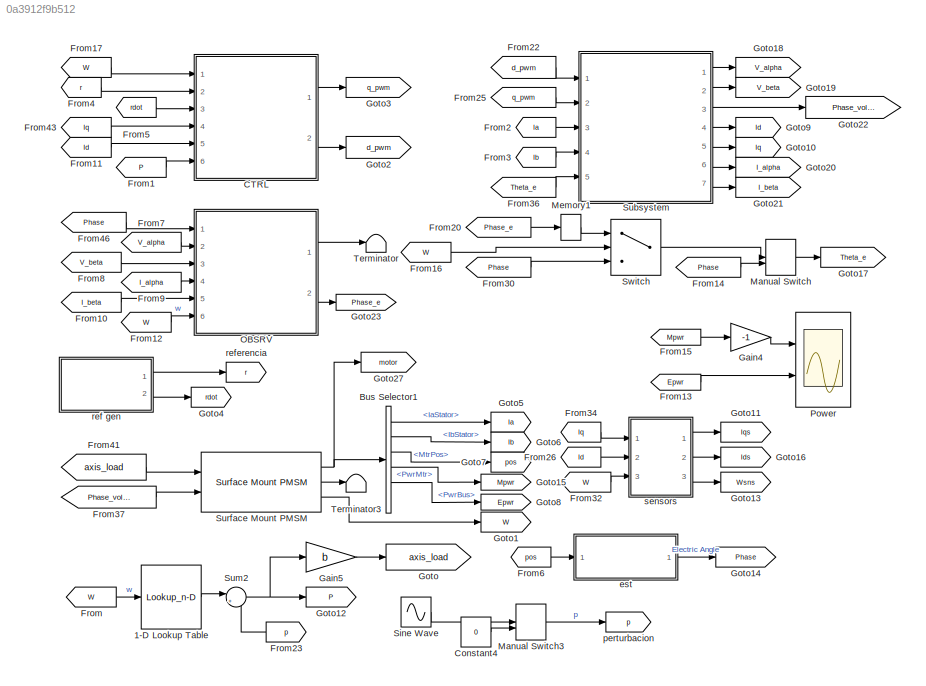
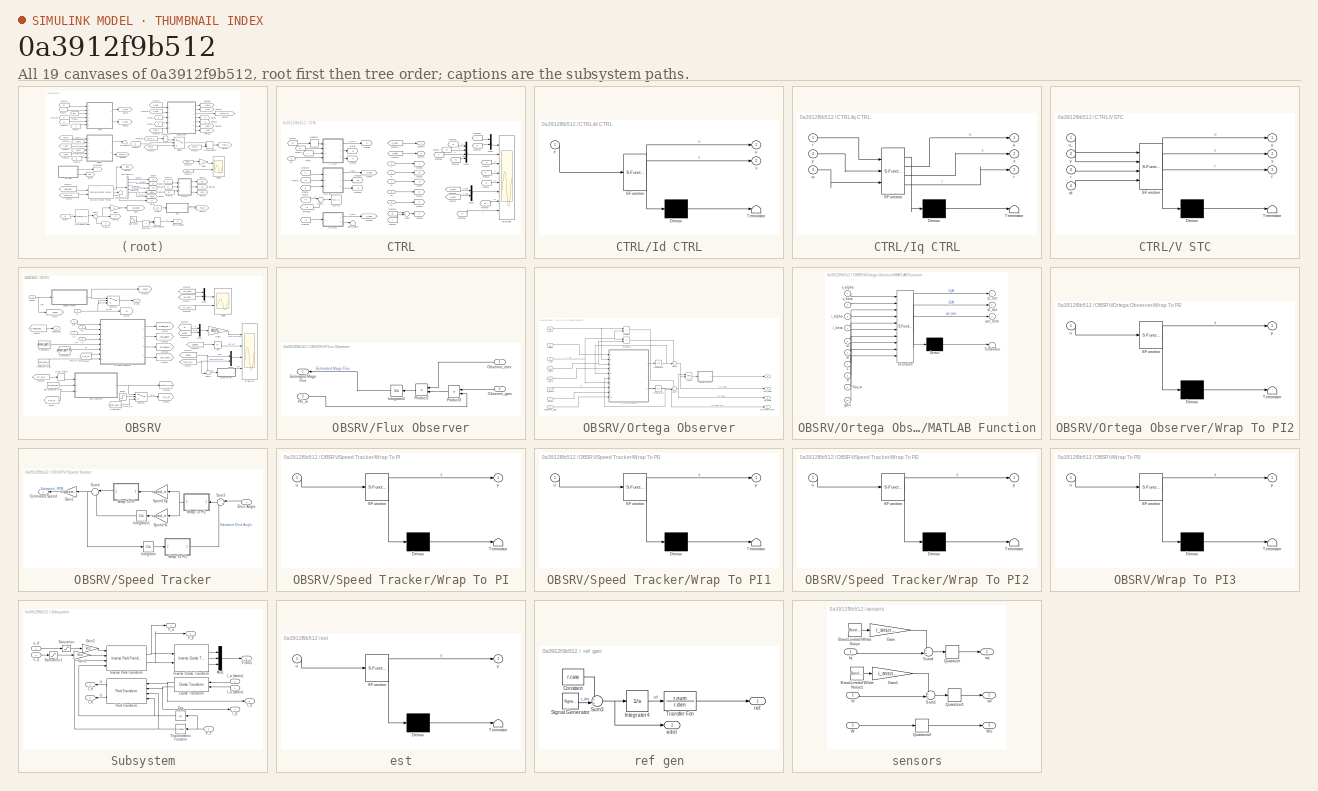
[diagram: thumbnail index - all 19 canvases of the model, root first then tree order]
MODEL slx_0a3912f9b512
KIND model
CONFIG AbsTol = auto
CONFIG EnableMultiTasking = on
CONFIG FixedStep = t_int
CONFIG InitFcn = svm_stc_bldc_data
CONFIG MaxStep = auto
CONFIG MinStep = 1e-6
CONFIG RelTol = 1e-3
CONFIG SampleTimeConstraint = Unconstrained
CONFIG SolverName = VariableStepAuto
CONFIG StartTime = 0.0
CONFIG StopTime = t_sim
BLOCK [Lookup_n-D] 1-D Lookup Table
  BreakpointsForDimension1 = fluid.W
  InputPortMap = u0
  InternalRulePriority = Speed
  NumberOfTableDimensions = 1
  Ports = [1, 1]
  RndMeth = Simplest
  Table = fluid.P
BLOCK [BusSelector] Bus Selector1
  OutputSignals = IaStator,IbStator,MtrPos,PwrInfo.PwrTrnsfrd.PwrMtr,PwrInfo.PwrTrnsfrd.PwrBus,MtrSpd
  Ports = [1, 6]
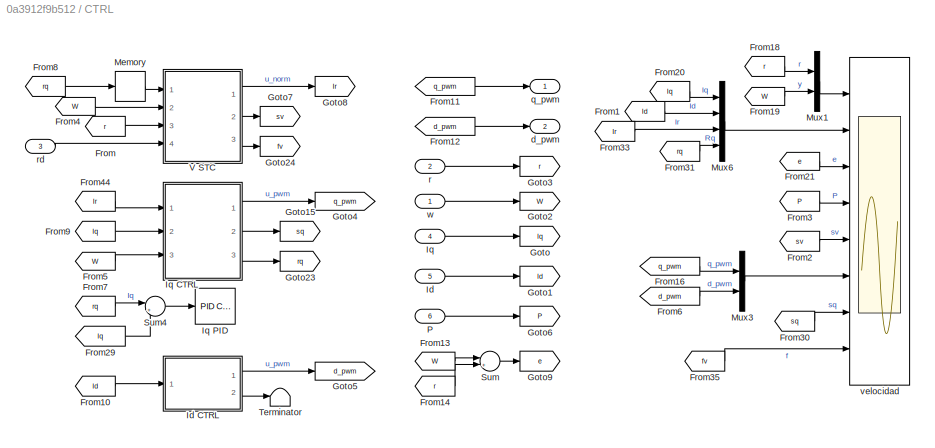
BLOCK [SubSystem] CTRL
  Ports = [6, 2]
  RequestExecContextInheritance = off
BLOCK [From] CTRL/From
  GotoTag = r
BLOCK [From] CTRL/From1
  GotoTag = Id
BLOCK [From] CTRL/From10
  GotoTag = Id
BLOCK [From] CTRL/From11
  GotoTag = q_pwm
BLOCK [From] CTRL/From12
  GotoTag = d_pwm
BLOCK [From] CTRL/From13
  GotoTag = W
BLOCK [From] CTRL/From14
  GotoTag = r
BLOCK [From] CTRL/From16
  GotoTag = q_pwm
BLOCK [From] CTRL/From18
  GotoTag = r
BLOCK [From] CTRL/From19
  GotoTag = W
BLOCK [From] CTRL/From2
  GotoTag = sv
BLOCK [From] CTRL/From20
  GotoTag = Iq
BLOCK [From] CTRL/From21
  GotoTag = e
BLOCK [From] CTRL/From29
  Commented = on
  GotoTag = Iq
BLOCK [From] CTRL/From3
  GotoTag = P
BLOCK [From] CTRL/From30
  GotoTag = sq
BLOCK [From] CTRL/From31
  GotoTag = rq
BLOCK [From] CTRL/From33
  GotoTag = Ir
BLOCK [From] CTRL/From35
  GotoTag = fv
BLOCK [From] CTRL/From4
  GotoTag = W
BLOCK [From] CTRL/From44
  GotoTag = Ir
BLOCK [From] CTRL/From5
  GotoTag = W
BLOCK [From] CTRL/From6
  GotoTag = d_pwm
BLOCK [From] CTRL/From7
  Commented = on
  GotoTag = rq
BLOCK [From] CTRL/From8
  GotoTag = rq
BLOCK [From] CTRL/From9
  GotoTag = Iq
BLOCK [Goto] CTRL/Goto
  GotoTag = Iq
BLOCK [Goto] CTRL/Goto1
  GotoTag = Id
BLOCK [Goto] CTRL/Goto15
  GotoTag = sq
BLOCK [Goto] CTRL/Goto2
  GotoTag = W
BLOCK [Goto] CTRL/Goto23
  GotoTag = rq
BLOCK [Goto] CTRL/Goto24
  GotoTag = fv
BLOCK [Goto] CTRL/Goto3
  GotoTag = r
BLOCK [Goto] CTRL/Goto4
  GotoTag = q_pwm
BLOCK [Goto] CTRL/Goto5
  GotoTag = d_pwm
BLOCK [Goto] CTRL/Goto6
  GotoTag = P
BLOCK [Goto] CTRL/Goto7
  GotoTag = sv
BLOCK [Goto] CTRL/Goto8
  GotoTag = Ir
BLOCK [Goto] CTRL/Goto9
  GotoTag = e
  NameLocation = top
BLOCK [Inport] CTRL/Id
  Port = 5
BLOCK [SubSystem] CTRL/Id CTRL
  ErrorFcn = Stateflow.Translate.translate
  PermitHierarchicalResolution = ExplicitOnly
  Ports = [1, 2]
  RequestExecContextInheritance = off
  SFBlockType = MATLAB Function
  SystemSampleTime = Id.ts
  TreatAsAtomicUnit = on
BLOCK [Demux] CTRL/Id CTRL/ Demux 
  Outputs = 1
  Ports = [1, 1]
BLOCK [S-Function] CTRL/Id CTRL/ SFunction 
  EnableBusSupport = on
  FunctionName = sf_sfun
  Parameters = Id
  PortCounts = [1 3]
  Ports = [1, 3]
  SFcnIsStateOwnerBlock = off
  SFunctionDeploymentMode = off
  Tag = Stateflow S-Function 2
BLOCK [Terminator] CTRL/Id CTRL/ Terminator 
BLOCK [Inport] CTRL/Id CTRL/e
BLOCK [Outport] CTRL/Id CTRL/s
  Port = 2
BLOCK [Outport] CTRL/Id CTRL/u
BLOCK [Inport] CTRL/Iq
  Port = 4
BLOCK [SubSystem] CTRL/Iq CTRL
  ErrorFcn = Stateflow.Translate.translate
  NameLocation = top
  PermitHierarchicalResolution = ExplicitOnly
  Ports = [3, 3]
  RequestExecContextInheritance = off
  SFBlockType = MATLAB Function
  SystemSampleTime = Iq.ts
  TreatAsAtomicUnit = on
BLOCK [Demux] CTRL/Iq CTRL/ Demux 
  Outputs = 1
  Ports = [1, 1]
BLOCK [S-Function] CTRL/Iq CTRL/ SFunction 
  EnableBusSupport = on
  FunctionName = sf_sfun
  Parameters = Iq
  PortCounts = [3 4]
  Ports = [3, 4]
  SFcnIsStateOwnerBlock = off
  SFunctionDeploymentMode = off
  Tag = Stateflow S-Function 3
BLOCK [Terminator] CTRL/Iq CTRL/ Terminator 
BLOCK [Outport] CTRL/Iq CTRL/r
  Port = 3
BLOCK [Inport] CTRL/Iq CTRL/r 
BLOCK [Outport] CTRL/Iq CTRL/s
  Port = 2
BLOCK [Outport] CTRL/Iq CTRL/u
BLOCK [Inport] CTRL/Iq CTRL/w
  Port = 3
BLOCK [Inport] CTRL/Iq CTRL/y
  Port = 2
BLOCK [Reference] CTRL/Iq PID  REF=pid_lib/PID Controller
  Commented = on
  Ports = [1, 1]
  SourceBlock = pid_lib/PID Controller
  SourceProductBaseCode = SL
  SourceType = PID 1dof
BLOCK [Memory] CTRL/Memory
BLOCK [Mux] CTRL/Mux1
  DisplayOption = bar
  Inputs = 2
  Ports = [2, 1]
BLOCK [Mux] CTRL/Mux3
  DisplayOption = bar
  Inputs = 2
  Ports = [2, 1]
BLOCK [Mux] CTRL/Mux6
  DisplayOption = bar
  Ports = [4, 1]
BLOCK [Inport] CTRL/P
  Port = 6
BLOCK [Sum] CTRL/Sum
  Inputs = |+-
  Ports = [2, 1]
BLOCK [Sum] CTRL/Sum4
  Commented = on
  Inputs = |+-
  Ports = [2, 1]
BLOCK [Terminator] CTRL/Terminator
BLOCK [SubSystem] CTRL/V STC
  ErrorFcn = Stateflow.Translate.translate
  NameLocation = top
  PermitHierarchicalResolution = ExplicitOnly
  Ports = [4, 3]
  RequestExecContextInheritance = off
  SFBlockType = MATLAB Function
  SystemSampleTime = v_stc.ts
  TreatAsAtomicUnit = on
BLOCK [Demux] CTRL/V STC/ Demux 
  Outputs = 1
  Ports = [1, 1]
BLOCK [S-Function] CTRL/V STC/ SFunction 
  EnableBusSupport = on
  FunctionName = sf_sfun
  Parameters = v_stc
  PortCounts = [4 4]
  Ports = [4, 4]
  SFcnIsStateOwnerBlock = off
  SFunctionDeploymentMode = off
  Tag = Stateflow S-Function 1
BLOCK [Terminator] CTRL/V STC/ Terminator 
BLOCK [Outport] CTRL/V STC/f
  Port = 3
BLOCK [Inport] CTRL/V STC/r
  Port = 3
BLOCK [Inport] CTRL/V STC/rd
  Port = 4
BLOCK [Outport] CTRL/V STC/s
  Port = 2
BLOCK [Outport] CTRL/V STC/u
BLOCK [Inport] CTRL/V STC/u_
BLOCK [Inport] CTRL/V STC/y
  Port = 2
BLOCK [Outport] CTRL/d_pwm
  Port = 2
BLOCK [Outport] CTRL/q_pwm
BLOCK [Inport] CTRL/r
  Port = 2
BLOCK [Inport] CTRL/rd
  Port = 3
BLOCK [Scope] CTRL/velocidad
  Floating = off
  NumInputPorts = 8
  Ports = [8]
  ScopeSpecificationString = Simulink.scopes.TimeScopeBlockCfg('CurrentConfiguration', extmgr.ConfigurationSet(extmgr.Configuration('Core','General UI',true,'FigureColor',[0.941176470588235 0.941176470588235 0.941176470588235]),extmgr.Configuration('Core','Source UI',true),extmgr.Configuration('Sources','WiredSimulink',true,'DataLoggingMaxPoints','1e6','DataLoggingLimitDataPoints',true,'DataLoggingSaveFormat','Array','DataLog...<+7453ch>
BLOCK [Inport] CTRL/w
BLOCK [Constant] Constant4
  Value = 0
BLOCK [From] From
  GotoTag = W
BLOCK [From] From1
  GotoTag = P
BLOCK [From] From10
  GotoTag = I_beta
BLOCK [From] From11
  GotoTag = Id
BLOCK [From] From12
  GotoTag = W
BLOCK [From] From13
  GotoTag = Epwr
BLOCK [From] From14
  GotoTag = Phase
BLOCK [From] From15
  GotoTag = Mpwr
BLOCK [From] From16
  GotoTag = W
BLOCK [From] From17
  GotoTag = W
BLOCK [From] From2
  GotoTag = Ia
BLOCK [From] From20
  GotoTag = Phase_e
BLOCK [From] From22
  GotoTag = d_pwm
BLOCK [From] From23
  GotoTag = p
BLOCK [From] From25
  GotoTag = q_pwm
BLOCK [From] From26
  Commented = on
  GotoTag = Id
BLOCK [From] From3
  GotoTag = Ib
BLOCK [From] From30
  GotoTag = Phase
  NameLocation = right
BLOCK [From] From32
  Commented = on
  GotoTag = W
BLOCK [From] From34
  Commented = on
  GotoTag = Iq
BLOCK [From] From36
  GotoTag = Theta_e
BLOCK [From] From37
  GotoTag = Phase_voltages
BLOCK [From] From4
  GotoTag = r
BLOCK [From] From41
  GotoTag = axis_load
BLOCK [From] From43
  GotoTag = Iq
BLOCK [From] From46
  GotoTag = Phase
BLOCK [From] From5
  GotoTag = rdot
BLOCK [From] From6
  GotoTag = pos
BLOCK [From] From7
  GotoTag = V_alpha
BLOCK [From] From8
  GotoTag = V_beta
BLOCK [From] From9
  GotoTag = I_alpha
BLOCK [Gain] Gain4
  Gain = -1
BLOCK [Gain] Gain5
  Gain = b
BLOCK [Goto] Goto
  GotoTag = axis_load
BLOCK [Goto] Goto1
  GotoTag = W
  NameLocation = top
BLOCK [Goto] Goto10
  GotoTag = Iq
BLOCK [Goto] Goto11
  Commented = on
  GotoTag = Iqs
BLOCK [Goto] Goto12
  GotoTag = P
BLOCK [Goto] Goto13
  Commented = on
  GotoTag = Wsns
BLOCK [Goto] Goto14
  GotoTag = Phase
BLOCK [Goto] Goto15
  GotoTag = Mpwr
BLOCK [Goto] Goto16
  Commented = on
  GotoTag = Ids
BLOCK [Goto] Goto17
  GotoTag = Theta_e
BLOCK [Goto] Goto18
  GotoTag = V_alpha
BLOCK [Goto] Goto19
  GotoTag = V_beta
BLOCK [Goto] Goto2
  GotoTag = d_pwm
BLOCK [Goto] Goto20
  GotoTag = I_alpha
BLOCK [Goto] Goto21
  GotoTag = I_beta
BLOCK [Goto] Goto22
  GotoTag = Phase_voltages
BLOCK [Goto] Goto23
  GotoTag = Phase_e
BLOCK [Goto] Goto27
  Commented = on
  GotoTag = motor
BLOCK [Goto] Goto3
  GotoTag = q_pwm
BLOCK [Goto] Goto4
  GotoTag = rdot
  NameLocation = top
BLOCK [Goto] Goto5
  GotoTag = Ia
BLOCK [Goto] Goto6
  GotoTag = Ib
BLOCK [Goto] Goto7
  GotoTag = pos
BLOCK [Goto] Goto8
  GotoTag = Epwr
BLOCK [Goto] Goto9
  GotoTag = Id
BLOCK [ManualSwitch] Manual Switch
BLOCK [ManualSwitch] Manual Switch3
  CurrentSetting = 0
BLOCK [Memory] Memory1
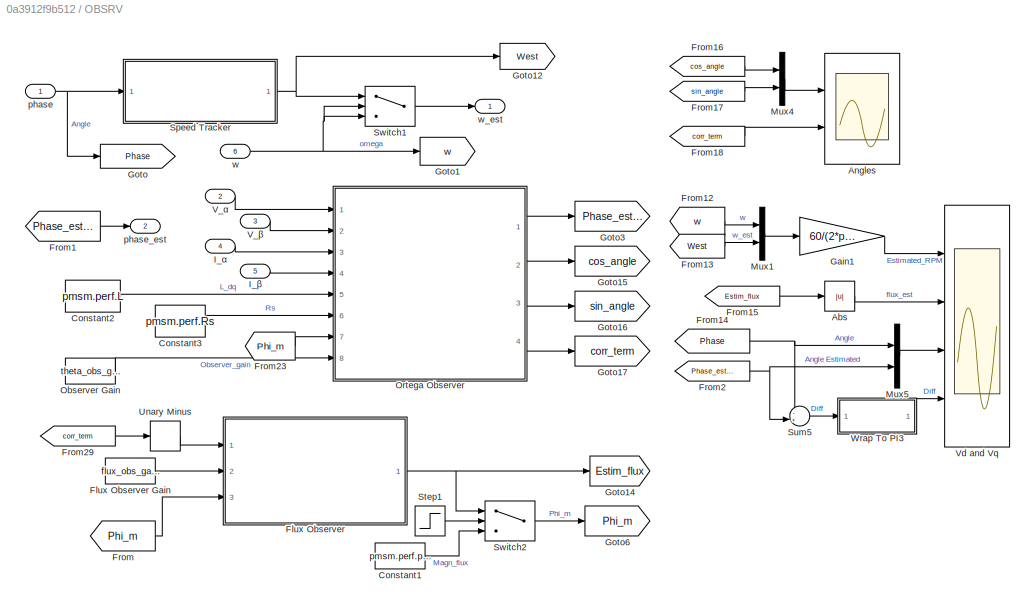
BLOCK [SubSystem] OBSRV
  Ports = [6, 2]
  RequestExecContextInheritance = off
BLOCK [Abs] OBSRV/Abs
  SaturateOnIntegerOverflow = off
BLOCK [Scope] OBSRV/Angles
  Floating = off
  NumInputPorts = 2
  Ports = [2]
  ScopeSpecificationString = Simulink.scopes.TimeScopeBlockCfg('CurrentConfiguration', extmgr.ConfigurationSet(extmgr.Configuration('Core','General UI',true),extmgr.Configuration('Core','Source UI',true),extmgr.Configuration('Sources','WiredSimulink',true,'DataLoggingVariableName','Angles','DataLogging',true,'DataLoggingSaveFormat','StructureWithTime'),extmgr.Configuration('Visuals','Time Domain',true,'SerializedDisplays',{st...<+2167ch>
BLOCK [Constant] OBSRV/Constant1
  Value = pmsm.perf.phi
BLOCK [Constant] OBSRV/Constant2
  Value = pmsm.perf.L
BLOCK [Constant] OBSRV/Constant3
  Value = pmsm.perf.Rs
BLOCK [SubSystem] OBSRV/Flux Observer
  Ports = [3, 1]
  RequestExecContextInheritance = off
BLOCK [Constant] OBSRV/Flux Observer Gain
  Value = flux_obs_gain
BLOCK [Outport] OBSRV/Flux Observer/Estimated Magn Flux
BLOCK [Integrator] OBSRV/Flux Observer/Integrator2
  Ports = [1, 1]
BLOCK [Inport] OBSRV/Flux Observer/Observer_error
BLOCK [Inport] OBSRV/Flux Observer/Observer_gain
  Port = 2
BLOCK [Inport] OBSRV/Flux Observer/Phi_m
  Port = 3
BLOCK [Product] OBSRV/Flux Observer/Product2
  Ports = [2, 1]
BLOCK [Product] OBSRV/Flux Observer/Product3
  Ports = [2, 1]
BLOCK [From] OBSRV/From
  GotoTag = Phi_m
BLOCK [From] OBSRV/From1
  GotoTag = Phase_estim
BLOCK [From] OBSRV/From12
  GotoTag = w
BLOCK [From] OBSRV/From13
  GotoTag = West
BLOCK [From] OBSRV/From14
  GotoTag = Phase
BLOCK [From] OBSRV/From15
  GotoTag = Estim_flux
BLOCK [From] OBSRV/From16
  GotoTag = cos_angle
BLOCK [From] OBSRV/From17
  GotoTag = sin_angle
BLOCK [From] OBSRV/From18
  GotoTag = corr_term
BLOCK [From] OBSRV/From2
  GotoTag = Phase_estim
BLOCK [From] OBSRV/From23
  GotoTag = Phi_m
BLOCK [From] OBSRV/From29
  GotoTag = corr_term
BLOCK [Gain] OBSRV/Gain1
  Gain = 60/(2*pi)
BLOCK [Goto] OBSRV/Goto
  GotoTag = Phase
BLOCK [Goto] OBSRV/Goto1
  GotoTag = w
BLOCK [Goto] OBSRV/Goto12
  GotoTag = West
BLOCK [Goto] OBSRV/Goto14
  GotoTag = Estim_flux
BLOCK [Goto] OBSRV/Goto15
  GotoTag = cos_angle
BLOCK [Goto] OBSRV/Goto16
  GotoTag = sin_angle
BLOCK [Goto] OBSRV/Goto17
  GotoTag = corr_term
BLOCK [Goto] OBSRV/Goto3
  GotoTag = Phase_estim
BLOCK [Goto] OBSRV/Goto6
  GotoTag = Phi_m
BLOCK [Inport] OBSRV/I_α
  Port = 4
BLOCK [Inport] OBSRV/I_β
  Port = 5
BLOCK [Mux] OBSRV/Mux1
  DisplayOption = bar
  Inputs = 2
  Ports = [2, 1]
BLOCK [Mux] OBSRV/Mux4
  DisplayOption = bar
  Inputs = 2
  Ports = [2, 1]
BLOCK [Mux] OBSRV/Mux5
  DisplayOption = bar
  Inputs = 2
  Ports = [2, 1]
BLOCK [Constant] OBSRV/Observer Gain
  NameLocation = left
  Value = theta_obs_gain
BLOCK [SubSystem] OBSRV/Ortega Observer
  Ports = [8, 4]
  RequestExecContextInheritance = off
BLOCK [Trigonometry] OBSRV/Ortega Observer/Atan2
  Operator = atan2
  Ports = [2, 1]
BLOCK [Integrator] OBSRV/Ortega Observer/Integrator
  Ports = [1, 1]
BLOCK [Integrator] OBSRV/Ortega Observer/Integrator1
  Ports = [1, 1]
BLOCK [Inport] OBSRV/Ortega Observer/L_dq
  Port = 5
BLOCK [SubSystem] OBSRV/Ortega Observer/MATLAB Function
  ErrorFcn = Stateflow.Translate.translate
  PermitHierarchicalResolution = ExplicitOnly
  Ports = [10, 3]
  RequestExecContextInheritance = off
  SFBlockType = MATLAB Function
  TreatAsAtomicUnit = on
BLOCK [Demux] OBSRV/Ortega Observer/MATLAB Function/ Demux 
  Outputs = 1
  Ports = [1, 1]
BLOCK [S-Function] OBSRV/Ortega Observer/MATLAB Function/ SFunction 
  EnableBusSupport = on
  FunctionName = sf_sfun
  PortCounts = [10 4]
  Ports = [10, 4]
  SFcnIsStateOwnerBlock = off
  SFunctionDeploymentMode = off
  Tag = Stateflow S-Function 5
BLOCK [Terminator] OBSRV/Ortega Observer/MATLAB Function/ Terminator 
BLOCK [Inport] OBSRV/Ortega Observer/MATLAB Function/L
  Port = 7
BLOCK [Inport] OBSRV/Ortega Observer/MATLAB Function/R
  Port = 8
BLOCK [Outport] OBSRV/Ortega Observer/MATLAB Function/corr_term
  Port = 3
BLOCK [Inport] OBSRV/Ortega Observer/MATLAB Function/flux_m
  Port = 9
BLOCK [Inport] OBSRV/Ortega Observer/MATLAB Function/gain
  Port = 10
BLOCK [Inport] OBSRV/Ortega Observer/MATLAB Function/i_alpha
  Port = 3
BLOCK [Inport] OBSRV/Ortega Observer/MATLAB Function/i_beta
  Port = 4
BLOCK [Inport] OBSRV/Ortega Observer/MATLAB Function/v_alpha
BLOCK [Inport] OBSRV/Ortega Observer/MATLAB Function/v_beta
  Port = 2
BLOCK [Inport] OBSRV/Ortega Observer/MATLAB Function/x1
  Port = 5
BLOCK [Outport] OBSRV/Ortega Observer/MATLAB Function/x1_dot
BLOCK [Inport] OBSRV/Ortega Observer/MATLAB Function/x2
  Port = 6
BLOCK [Outport] OBSRV/Ortega Observer/MATLAB Function/x2_dot
  Port = 2
BLOCK [Inport] OBSRV/Ortega Observer/Observer_gain
  Port = 8
BLOCK [Product] OBSRV/Ortega Observer/Product
  Ports = [2, 1]
BLOCK [Product] OBSRV/Ortega Observer/Product1
  Ports = [2, 1]
BLOCK [Inport] OBSRV/Ortega Observer/R_phase
  Port = 6
BLOCK [Sum] OBSRV/Ortega Observer/Sum3
  Inputs = -+|
  Ports = [2, 1]
BLOCK [Sum] OBSRV/Ortega Observer/Sum4
  Inputs = -+|
  Ports = [2, 1]
BLOCK [SubSystem] OBSRV/Ortega Observer/Wrap To PI2
  ErrorFcn = Stateflow.Translate.translate
  PermitHierarchicalResolution = ExplicitOnly
  Ports = [1, 1]
  RequestExecContextInheritance = off
  SFBlockType = MATLAB Function
  TreatAsAtomicUnit = on
BLOCK [Demux] OBSRV/Ortega Observer/Wrap To PI2/ Demux 
  Outputs = 1
  Ports = [1, 1]
BLOCK [S-Function] OBSRV/Ortega Observer/Wrap To PI2/ SFunction 
  EnableBusSupport = on
  FunctionName = sf_sfun
  PortCounts = [1 2]
  Ports = [1, 2]
  SFcnIsStateOwnerBlock = off
  SFunctionDeploymentMode = off
  Tag = Stateflow S-Function 6
BLOCK [Terminator] OBSRV/Ortega Observer/Wrap To PI2/ Terminator 
BLOCK [Inport] OBSRV/Ortega Observer/Wrap To PI2/u
BLOCK [Outport] OBSRV/Ortega Observer/Wrap To PI2/y
BLOCK [Outport] OBSRV/Ortega Observer/correction_term
  Port = 4
BLOCK [Outport] OBSRV/Ortega Observer/cos_angle
  Port = 2
BLOCK [Inport] OBSRV/Ortega Observer/flux_m
  Port = 7
BLOCK [Inport] OBSRV/Ortega Observer/i_alpha
  Port = 3
BLOCK [Inport] OBSRV/Ortega Observer/i_beta
  Port = 4
BLOCK [Outport] OBSRV/Ortega Observer/sin_angle
  Port = 3
BLOCK [Inport] OBSRV/Ortega Observer/v_alpha
BLOCK [Inport] OBSRV/Ortega Observer/v_beta
  Port = 2
BLOCK [Outport] OBSRV/Ortega Observer/y
BLOCK [SubSystem] OBSRV/Speed Tracker
  Ports = [1, 1]
  RequestExecContextInheritance = off
BLOCK [Inport] OBSRV/Speed Tracker/Elect Angle
BLOCK [Outport] OBSRV/Speed Tracker/Estimated Speed
BLOCK [Gain] OBSRV/Speed Tracker/Gain2
  Gain = 2/pmsm.spec.poles
BLOCK [Integrator] OBSRV/Speed Tracker/Integrator
  Ports = [1, 1]
BLOCK [Integrator] OBSRV/Speed Tracker/Integrator1
  Ports = [1, 1]
BLOCK [Gain] OBSRV/Speed Tracker/Speed Ki
  Gain = speed_obs.ki
BLOCK [Gain] OBSRV/Speed Tracker/Speed Kp
  Gain = speed_obs.kp
BLOCK [Sum] OBSRV/Speed Tracker/Sum3
  Inputs = |+-
  Ports = [2, 1]
BLOCK [Sum] OBSRV/Speed Tracker/Sum4
  Inputs = |++
  Ports = [2, 1]
BLOCK [SubSystem] OBSRV/Speed Tracker/Wrap To PI
  ErrorFcn = Stateflow.Translate.translate
  PermitHierarchicalResolution = ExplicitOnly
  Ports = [1, 1]
  RequestExecContextInheritance = off
  SFBlockType = MATLAB Function
  TreatAsAtomicUnit = on
BLOCK [Demux] OBSRV/Speed Tracker/Wrap To PI/ Demux 
  Outputs = 1
  Ports = [1, 1]
BLOCK [S-Function] OBSRV/Speed Tracker/Wrap To PI/ SFunction 
  EnableBusSupport = on
  FunctionName = sf_sfun
  PortCounts = [1 2]
  Ports = [1, 2]
  SFcnIsStateOwnerBlock = off
  SFunctionDeploymentMode = off
  Tag = Stateflow S-Function 7
BLOCK [Terminator] OBSRV/Speed Tracker/Wrap To PI/ Terminator 
BLOCK [Inport] OBSRV/Speed Tracker/Wrap To PI/u
BLOCK [Outport] OBSRV/Speed Tracker/Wrap To PI/y
BLOCK [SubSystem] OBSRV/Speed Tracker/Wrap To PI1
  ErrorFcn = Stateflow.Translate.translate
  PermitHierarchicalResolution = ExplicitOnly
  Ports = [1, 1]
  RequestExecContextInheritance = off
  SFBlockType = MATLAB Function
  TreatAsAtomicUnit = on
BLOCK [Demux] OBSRV/Speed Tracker/Wrap To PI1/ Demux 
  Outputs = 1
  Ports = [1, 1]
BLOCK [S-Function] OBSRV/Speed Tracker/Wrap To PI1/ SFunction 
  EnableBusSupport = on
  FunctionName = sf_sfun
  PortCounts = [1 2]
  Ports = [1, 2]
  SFcnIsStateOwnerBlock = off
  SFunctionDeploymentMode = off
  Tag = Stateflow S-Function 8
BLOCK [Terminator] OBSRV/Speed Tracker/Wrap To PI1/ Terminator 
BLOCK [Inport] OBSRV/Speed Tracker/Wrap To PI1/u
BLOCK [Outport] OBSRV/Speed Tracker/Wrap To PI1/y
BLOCK [SubSystem] OBSRV/Speed Tracker/Wrap To PI2
  ErrorFcn = Stateflow.Translate.translate
  PermitHierarchicalResolution = ExplicitOnly
  Ports = [1, 1]
  RequestExecContextInheritance = off
  SFBlockType = MATLAB Function
  TreatAsAtomicUnit = on
BLOCK [Demux] OBSRV/Speed Tracker/Wrap To PI2/ Demux 
  Outputs = 1
  Ports = [1, 1]
BLOCK [S-Function] OBSRV/Speed Tracker/Wrap To PI2/ SFunction 
  EnableBusSupport = on
  FunctionName = sf_sfun
  PortCounts = [1 2]
  Ports = [1, 2]
  SFcnIsStateOwnerBlock = off
  SFunctionDeploymentMode = off
  Tag = Stateflow S-Function 9
BLOCK [Terminator] OBSRV/Speed Tracker/Wrap To PI2/ Terminator 
BLOCK [Inport] OBSRV/Speed Tracker/Wrap To PI2/u
BLOCK [Outport] OBSRV/Speed Tracker/Wrap To PI2/y
BLOCK [Step] OBSRV/Step1
  After = 2
  SampleTime = 0
  Time = 0.01
BLOCK [Sum] OBSRV/Sum5
  Inputs = -+|
  Ports = [2, 1]
BLOCK [Switch] OBSRV/Switch1
  Criteria = u2 > Threshold
  InputSameDT = off
  SaturateOnIntegerOverflow = off
  Threshold = 25000*2*pi/60
BLOCK [Switch] OBSRV/Switch2
  Criteria = u2 > Threshold
  InputSameDT = off
  SaturateOnIntegerOverflow = off
  Threshold = 0.5
BLOCK [UnaryMinus] OBSRV/Unary Minus
BLOCK [Inport] OBSRV/V_α
  Port = 2
BLOCK [Inport] OBSRV/V_β
  Port = 3
BLOCK [Scope] OBSRV/Vd and Vq
  Floating = off
  NumInputPorts = 4
  Ports = [4]
  ScopeSpecificationString = Simulink.scopes.TimeScopeBlockCfg('CurrentConfiguration', extmgr.ConfigurationSet(extmgr.Configuration('Core','General UI',true),extmgr.Configuration('Core','Source UI',true),extmgr.Configuration('Sources','WiredSimulink',true,'DataLogging',true,'DataLoggingSaveFormat','StructureWithTime','DataLoggingVariableName','ObsData'),extmgr.Configuration('Visuals','Time Domain',true,'SerializedDisplays',{s...<+3638ch>
BLOCK [SubSystem] OBSRV/Wrap To PI3
  ErrorFcn = Stateflow.Translate.translate
  PermitHierarchicalResolution = ExplicitOnly
  Ports = [1, 1]
  RequestExecContextInheritance = off
  SFBlockType = MATLAB Function
  TreatAsAtomicUnit = on
BLOCK [Demux] OBSRV/Wrap To PI3/ Demux 
  Outputs = 1
  Ports = [1, 1]
BLOCK [S-Function] OBSRV/Wrap To PI3/ SFunction 
  EnableBusSupport = on
  FunctionName = sf_sfun
  PortCounts = [1 2]
  Ports = [1, 2]
  SFcnIsStateOwnerBlock = off
  SFunctionDeploymentMode = off
  Tag = Stateflow S-Function 10
BLOCK [Terminator] OBSRV/Wrap To PI3/ Terminator 
BLOCK [Inport] OBSRV/Wrap To PI3/u
BLOCK [Outport] OBSRV/Wrap To PI3/y
BLOCK [Inport] OBSRV/phase
BLOCK [Outport] OBSRV/phase_est
  Port = 2
BLOCK [Inport] OBSRV/w
  Port = 6
BLOCK [Outport] OBSRV/w_est
BLOCK [Scope] Power
  Floating = off
  NumInputPorts = 2
  Ports = [2]
  ScopeSpecificationString = Simulink.scopes.TimeScopeBlockCfg('CurrentConfiguration', extmgr.ConfigurationSet(extmgr.Configuration('Core','General UI',true),extmgr.Configuration('Core','Source UI',true),extmgr.Configuration('Sources','WiredSimulink',true,'DataLoggingVariableName','ScopeData6'),extmgr.Configuration('Visuals','Time Domain',true,'SerializedDisplays',{struct('MinYLimReal','-13516.79456','MaxYLimReal','11646.9924...<+2157ch>
BLOCK [Sin] Sine Wave
  Amplitude = p.a
  Frequency = p.w
  Ports = [0, 1]
  SampleTime = 0
BLOCK [SubSystem] Subsystem
  Ports = [5, 7]
  RequestExecContextInheritance = off
BLOCK [Reference] Subsystem/Clarke Transform  REF=mcbcontrolslib/Clarke Transform
  Ports = [2, 2]
  SourceBlock = mcbcontrolslib/Clarke Transform
  SourceProductBaseCode = MT
  SourceType = Clarke Transform
BLOCK [Trigonometry] Subsystem/Cos
  Operator = cos
  Ports = [1, 1]
BLOCK [Gain] Subsystem/Gain1
  Gain = Vcc
BLOCK [Gain] Subsystem/Gain2
  Gain = Vcc
BLOCK [Inport] Subsystem/I_a (stator)
  NameLocation = top
  Port = 3
BLOCK [Inport] Subsystem/I_b (stator)
  Port = 4
BLOCK [Outport] Subsystem/I_d
  Port = 4
BLOCK [Outport] Subsystem/I_q
  Port = 5
BLOCK [Outport] Subsystem/I_α
  Port = 6
BLOCK [Outport] Subsystem/I_β
  Port = 7
BLOCK [Reference] Subsystem/Inverse Clarke Transform  REF=mcbcontrolslib/Inverse Clarke Transform
  Ports = [2, 3]
  SourceBlock = mcbcontrolslib/Inverse Clarke Transform
  SourceProductBaseCode = MT
  SourceType = Inverse Clarke Transform
BLOCK [Reference] Subsystem/Inverse Park Transform  REF=mcbcontrolslib/Inverse Park Transform
  Ports = [4, 2]
  SourceBlock = mcbcontrolslib/Inverse Park Transform
  SourceProductBaseCode = MT
  SourceType = Inverse Park Transform
BLOCK [Mux] Subsystem/Mux1
  DisplayOption = bar
  Inputs = 3
  Ports = [3, 1]
BLOCK [Reference] Subsystem/Park Transform  REF=mcbcontrolslib/Park Transform
  Ports = [4, 2]
  SourceBlock = mcbcontrolslib/Park Transform
  SourceProductBaseCode = MT
  SourceType = Park Transform
BLOCK [Saturate] Subsystem/Saturation
  LowerLimit = -0.95
  UpperLimit = 0.95
BLOCK [Saturate] Subsystem/Saturation1
  LowerLimit = -0.95
  UpperLimit = 0.95
BLOCK [Trigonometry] Subsystem/Trigonometric Function
  Ports = [1, 1]
BLOCK [Outport] Subsystem/V (abc)
  Port = 3
BLOCK [Outport] Subsystem/V_α
BLOCK [Outport] Subsystem/V_β
  Port = 2
BLOCK [Inport] Subsystem/u_d
  NameLocation = top
BLOCK [Inport] Subsystem/u_q
  Port = 2
BLOCK [Inport] Subsystem/θ_e
  Port = 5
BLOCK [Sum] Sum2
  Inputs = |++
  Ports = [2, 1]
BLOCK [Reference] Surface Mount PMSM  REF=autolibpmsmexterior/Surface Mount PMSM
  Ports = [2, 3]
  SourceBlock = autolibpmsmexterior/Surface Mount PMSM
  SourceProductBaseCode = PW,DR,MT,UV,VE
  SourceType = Surface Mount PMSM
BLOCK [Switch] Switch
  Criteria = u2 > Threshold
  InputSameDT = off
  SaturateOnIntegerOverflow = off
  Threshold = 300
BLOCK [Terminator] Terminator
BLOCK [Terminator] Terminator3
BLOCK [SubSystem] est
  ErrorFcn = Stateflow.Translate.translate
  PermitHierarchicalResolution = ExplicitOnly
  Ports = [1, 1]
  RequestExecContextInheritance = off
  SFBlockType = MATLAB Function
  TreatAsAtomicUnit = on
BLOCK [Demux] est/ Demux 
  Outputs = 1
  Ports = [1, 1]
BLOCK [S-Function] est/ SFunction 
  EnableBusSupport = on
  FunctionName = sf_sfun
  Parameters = pmsm
  PortCounts = [1 2]
  Ports = [1, 2]
  SFcnIsStateOwnerBlock = off
  SFunctionDeploymentMode = off
  Tag = Stateflow S-Function 4
BLOCK [Terminator] est/ Terminator 
BLOCK [Inport] est/u
BLOCK [Outport] est/y
BLOCK [Goto] perturbacion
  GotoTag = p
  NameLocation = top
BLOCK [SubSystem] ref gen
  Ports = [0, 2]
  RequestExecContextInheritance = off
BLOCK [Constant] ref gen/Constant
  Value = r.rate
BLOCK [Integrator] ref gen/Integrator4
  InitialCondition = r.off
  LimitOutput = on
  LowerSaturationLimit = 0
  Ports = [1, 1]
  UpperSaturationLimit = r.lim
BLOCK [SignalGenerator] ref gen/Signal Generator
  Amplitude = r.a
  Frequency = r.f
  Ports = [0, 1]
BLOCK [Sum] ref gen/Sum3
  Inputs = ++|
  Ports = [2, 1]
BLOCK [TransferFcn] ref gen/Transfer Fcn
  Denominator = r.den
  Numerator = r.num
BLOCK [Outport] ref gen/edot
  Port = 2
BLOCK [Outport] ref gen/ref
BLOCK [Goto] referencia
  GotoTag = r
  NameLocation = top
BLOCK [SubSystem] sensors
  Commented = on
  Ports = [3, 3]
  RequestExecContextInheritance = off
BLOCK [Reference] sensors/Band-Limited White Noise  REF=simulink/Sources/Band-Limited
White Noise
  Ports = [0, 1]
  SourceBlock = simulink/Sources/Band-Limited\nWhite Noise
  SourceProductBaseCode = SL
  SourceType = Band-Limited White Noise.
BLOCK [Reference] sensors/Band-Limited White Noise1  REF=simulink/Sources/Band-Limited
White Noise
  Ports = [0, 1]
  SourceBlock = simulink/Sources/Band-Limited\nWhite Noise
  SourceProductBaseCode = SL
  SourceType = Band-Limited White Noise.
BLOCK [Gain] sensors/Gain
  Gain = i_sns.nse
BLOCK [Gain] sensors/Gain1
  Gain = i_sns.nse
BLOCK [Inport] sensors/Id
  Port = 2
BLOCK [Inport] sensors/Iq
BLOCK [Quantizer] sensors/Quantizer
  QuantizationInterval = i_sns.qnt
BLOCK [Quantizer] sensors/Quantizer1
  QuantizationInterval = i_sns.qnt
BLOCK [Quantizer] sensors/Quantizer2
  QuantizationInterval = w_sns.qnt
BLOCK [Sum] sensors/Sum1
  Inputs = ++|
  Ports = [2, 1]
BLOCK [Sum] sensors/Sum4
  Inputs = ++|
  Ports = [2, 1]
BLOCK [Inport] sensors/W
  Port = 3
BLOCK [Outport] sensors/Ws
  Port = 3
BLOCK [Outport] sensors/sd
  Port = 2
BLOCK [Outport] sensors/sq
LINE 1-D Lookup Table:1 -> Sum2:1
LINE Bus Selector1:1 -> Goto5:1
LINE Bus Selector1:2 -> Goto6:1
LINE Bus Selector1:3 -> Goto7:1
LINE Bus Selector1:4 -> Goto15:1
LINE Bus Selector1:5 -> Goto8:1
LINE CTRL/From10:1 -> CTRL/Id CTRL:1
LINE CTRL/From11:1 -> CTRL/q_pwm:1
LINE CTRL/From12:1 -> CTRL/d_pwm:1
LINE CTRL/From13:1 -> CTRL/Sum:1
LINE CTRL/From14:1 -> CTRL/Sum:2
LINE CTRL/From16:1 -> CTRL/Mux3:1
LINE CTRL/From18:1 -> CTRL/Mux1:1
LINE CTRL/From19:1 -> CTRL/Mux1:2
LINE CTRL/From1:1 -> CTRL/Mux6:2
LINE CTRL/From20:1 -> CTRL/Mux6:1
LINE CTRL/From21:1 -> CTRL/velocidad:3
LINE CTRL/From29:1 -> CTRL/Sum4:2
LINE CTRL/From2:1 -> CTRL/velocidad:5
LINE CTRL/From30:1 -> CTRL/velocidad:7
LINE CTRL/From31:1 -> CTRL/Mux6:4
LINE CTRL/From33:1 -> CTRL/Mux6:3
LINE CTRL/From35:1 -> CTRL/velocidad:8
LINE CTRL/From3:1 -> CTRL/velocidad:4
LINE CTRL/From44:1 -> CTRL/Iq CTRL:1
LINE CTRL/From4:1 -> CTRL/V STC:2
LINE CTRL/From5:1 -> CTRL/Iq CTRL:3
LINE CTRL/From6:1 -> CTRL/Mux3:2
LINE CTRL/From7:1 -> CTRL/Sum4:1
LINE CTRL/From8:1 -> CTRL/Memory:1
LINE CTRL/From9:1 -> CTRL/Iq CTRL:2
LINE CTRL/From:1 -> CTRL/V STC:3
LINE CTRL/Id CTRL:1 -> CTRL/Goto5:1
LINE CTRL/Id CTRL:2 -> CTRL/Terminator:1
LINE CTRL/Id:1 -> CTRL/Goto1:1
LINE CTRL/Iq CTRL:1 -> CTRL/Goto4:1
LINE CTRL/Iq CTRL:2 -> CTRL/Goto15:1
LINE CTRL/Iq CTRL:3 -> CTRL/Goto23:1
LINE CTRL/Iq:1 -> CTRL/Goto:1
LINE CTRL/Memory:1 -> CTRL/V STC:1
LINE CTRL/Mux1:1 -> CTRL/velocidad:1
LINE CTRL/Mux3:1 -> CTRL/velocidad:6
LINE CTRL/Mux6:1 -> CTRL/velocidad:2
LINE CTRL/P:1 -> CTRL/Goto6:1
LINE CTRL/Sum4:1 -> CTRL/Iq PID:1
LINE CTRL/Sum:1 -> CTRL/Goto9:1
LINE CTRL/V STC:1 -> CTRL/Goto8:1
LINE CTRL/V STC:2 -> CTRL/Goto7:1
LINE CTRL/V STC:3 -> CTRL/Goto24:1
LINE CTRL/r:1 -> CTRL/Goto3:1
LINE CTRL/rd:1 -> CTRL/V STC:4
LINE CTRL/w:1 -> CTRL/Goto2:1
LINE CTRL:1 -> Goto3:1
LINE CTRL:2 -> Goto2:1
LINE Constant4:1 -> Manual Switch3:2
LINE From10:1 -> OBSRV:5
LINE From11:1 -> CTRL:5
LINE From12:1 -> OBSRV:6
LINE From13:1 -> Power:2
LINE From14:1 -> Manual Switch:2
LINE From15:1 -> Gain4:1
LINE From16:1 -> Switch:2
LINE From17:1 -> CTRL:1
LINE From1:1 -> CTRL:6
LINE From20:1 -> Memory1:1
LINE From22:1 -> Subsystem:1
LINE From23:1 -> Sum2:2
LINE From25:1 -> Subsystem:2
LINE From26:1 -> sensors:2
LINE From2:1 -> Subsystem:3
LINE From30:1 -> Switch:3
LINE From32:1 -> sensors:3
LINE From34:1 -> sensors:1
LINE From36:1 -> Subsystem:5
LINE From37:1 -> Surface Mount PMSM:2
LINE From3:1 -> Subsystem:4
LINE From41:1 -> Surface Mount PMSM:1
LINE From43:1 -> CTRL:4
LINE From46:1 -> OBSRV:1
LINE From4:1 -> CTRL:2
LINE From5:1 -> CTRL:3
LINE From6:1 -> est:1
LINE From7:1 -> OBSRV:2
LINE From8:1 -> OBSRV:3
LINE From9:1 -> OBSRV:4
LINE From:1 -> 1-D Lookup Table:1
LINE Gain4:1 -> Power:1
LINE Gain5:1 -> Goto:1
LINE Manual Switch3:1 -> perturbacion:1
LINE Manual Switch:1 -> Goto17:1
LINE Memory1:1 -> Switch:1
LINE OBSRV/Abs:1 -> OBSRV/Vd and Vq:2
LINE OBSRV/Constant1:1 -> OBSRV/Switch2:3
LINE OBSRV/Constant2:1 -> OBSRV/Ortega Observer:5
LINE OBSRV/Constant3:1 -> OBSRV/Ortega Observer:6
LINE OBSRV/Flux Observer Gain:1 -> OBSRV/Flux Observer:2
LINE OBSRV/Flux Observer/Integrator2:1 -> OBSRV/Flux Observer/Estimated Magn Flux:1
LINE OBSRV/Flux Observer/Observer_error:1 -> OBSRV/Flux Observer/Product2:1
LINE OBSRV/Flux Observer/Observer_gain:1 -> OBSRV/Flux Observer/Product3:1
LINE OBSRV/Flux Observer/Phi_m:1 -> OBSRV/Flux Observer/Product3:2
LINE OBSRV/Flux Observer/Product2:1 -> OBSRV/Flux Observer/Integrator2:1
LINE OBSRV/Flux Observer/Product3:1 -> OBSRV/Flux Observer/Product2:2
NET OBSRV/Flux Observer:1 -> OBSRV/Goto14:1, OBSRV/Switch2:1
LINE OBSRV/From12:1 -> OBSRV/Mux1:1
LINE OBSRV/From13:1 -> OBSRV/Mux1:2
NET OBSRV/From14:1 -> OBSRV/Mux5:1, OBSRV/Sum5:1
LINE OBSRV/From15:1 -> OBSRV/Abs:1
LINE OBSRV/From16:1 -> OBSRV/Mux4:1
LINE OBSRV/From17:1 -> OBSRV/Mux4:2
LINE OBSRV/From18:1 -> OBSRV/Angles:2
LINE OBSRV/From1:1 -> OBSRV/phase_est:1
LINE OBSRV/From23:1 -> OBSRV/Ortega Observer:7
LINE OBSRV/From29:1 -> OBSRV/Unary Minus:1
NET OBSRV/From2:1 -> OBSRV/Mux5:2, OBSRV/Sum5:2
LINE OBSRV/From:1 -> OBSRV/Flux Observer:3
LINE OBSRV/Gain1:1 -> OBSRV/Vd and Vq:1
LINE OBSRV/I_α:1 -> OBSRV/Ortega Observer:3
LINE OBSRV/I_β:1 -> OBSRV/Ortega Observer:4
LINE OBSRV/Mux1:1 -> OBSRV/Gain1:1
LINE OBSRV/Mux4:1 -> OBSRV/Angles:1
LINE OBSRV/Mux5:1 -> OBSRV/Vd and Vq:3
LINE OBSRV/Observer Gain:1 -> OBSRV/Ortega Observer:8
LINE OBSRV/Ortega Observer/Atan2:1 -> OBSRV/Ortega Observer/Wrap To PI2:1
NET OBSRV/Ortega Observer/Integrator1:1 -> OBSRV/Ortega Observer/MATLAB Function:6, OBSRV/Ortega Observer/Sum4:2
NET OBSRV/Ortega Observer/Integrator:1 -> OBSRV/Ortega Observer/MATLAB Function:5, OBSRV/Ortega Observer/Sum3:2
NET OBSRV/Ortega Observer/L_dq:1 -> OBSRV/Ortega Observer/MATLAB Function:7, OBSRV/Ortega Observer/Product1:1, OBSRV/Ortega Observer/Product:2
LINE OBSRV/Ortega Observer/MATLAB Function:1 -> OBSRV/Ortega Observer/Integrator:1
LINE OBSRV/Ortega Observer/MATLAB Function:2 -> OBSRV/Ortega Observer/Integrator1:1
LINE OBSRV/Ortega Observer/MATLAB Function:3 -> OBSRV/Ortega Observer/correction_term:1
LINE OBSRV/Ortega Observer/Observer_gain:1 -> OBSRV/Ortega Observer/MATLAB Function:10
LINE OBSRV/Ortega Observer/Product1:1 -> OBSRV/Ortega Observer/Sum3:1
LINE OBSRV/Ortega Observer/Product:1 -> OBSRV/Ortega Observer/Sum4:1
LINE OBSRV/Ortega Observer/R_phase:1 -> OBSRV/Ortega Observer/MATLAB Function:8
NET OBSRV/Ortega Observer/Sum3:1 -> OBSRV/Ortega Observer/Atan2:2, OBSRV/Ortega Observer/cos_angle:1
NET OBSRV/Ortega Observer/Sum4:1 -> OBSRV/Ortega Observer/Atan2:1, OBSRV/Ortega Observer/sin_angle:1
LINE OBSRV/Ortega Observer/Wrap To PI2:1 -> OBSRV/Ortega Observer/y:1
LINE OBSRV/Ortega Observer/flux_m:1 -> OBSRV/Ortega Observer/MATLAB Function:9
NET OBSRV/Ortega Observer/i_alpha:1 -> OBSRV/Ortega Observer/MATLAB Function:3, OBSRV/Ortega Observer/Product1:2
LINE OBSRV/Ortega Observer/i_beta:1 -> OBSRV/Ortega Observer/MATLAB Function:4
LINE OBSRV/Ortega Observer/v_alpha:1 -> OBSRV/Ortega Observer/MATLAB Function:1
NET OBSRV/Ortega Observer/v_beta:1 -> OBSRV/Ortega Observer/MATLAB Function:2, OBSRV/Ortega Observer/Product:1
LINE OBSRV/Ortega Observer:1 -> OBSRV/Goto3:1
LINE OBSRV/Ortega Observer:2 -> OBSRV/Goto15:1
LINE OBSRV/Ortega Observer:3 -> OBSRV/Goto16:1
LINE OBSRV/Ortega Observer:4 -> OBSRV/Goto17:1
LINE OBSRV/Speed Tracker/Elect Angle:1 -> OBSRV/Speed Tracker/Sum3:1
LINE OBSRV/Speed Tracker/Gain2:1 -> OBSRV/Speed Tracker/Estimated Speed:1
LINE OBSRV/Speed Tracker/Integrator1:1 -> OBSRV/Speed Tracker/Sum4:2
LINE OBSRV/Speed Tracker/Integrator:1 -> OBSRV/Speed Tracker/Wrap To PI1:1
LINE OBSRV/Speed Tracker/Speed Ki:1 -> OBSRV/Speed Tracker/Integrator1:1
LINE OBSRV/Speed Tracker/Speed Kp:1 -> OBSRV/Speed Tracker/Wrap To PI:1
LINE OBSRV/Speed Tracker/Sum3:1 -> OBSRV/Speed Tracker/Wrap To PI2:1
NET OBSRV/Speed Tracker/Sum4:1 -> OBSRV/Speed Tracker/Gain2:1, OBSRV/Speed Tracker/Integrator:1
LINE OBSRV/Speed Tracker/Wrap To PI1:1 -> OBSRV/Speed Tracker/Sum3:2
NET OBSRV/Speed Tracker/Wrap To PI2:1 -> OBSRV/Speed Tracker/Speed Ki:1, OBSRV/Speed Tracker/Speed Kp:1
LINE OBSRV/Speed Tracker/Wrap To PI:1 -> OBSRV/Speed Tracker/Sum4:1
NET OBSRV/Speed Tracker:1 -> OBSRV/Goto12:1, OBSRV/Switch1:1
LINE OBSRV/Step1:1 -> OBSRV/Switch2:2
LINE OBSRV/Sum5:1 -> OBSRV/Wrap To PI3:1
LINE OBSRV/Switch1:1 -> OBSRV/w_est:1
LINE OBSRV/Switch2:1 -> OBSRV/Goto6:1
LINE OBSRV/Unary Minus:1 -> OBSRV/Flux Observer:1
LINE OBSRV/V_α:1 -> OBSRV/Ortega Observer:1
LINE OBSRV/V_β:1 -> OBSRV/Ortega Observer:2
LINE OBSRV/Wrap To PI3:1 -> OBSRV/Vd and Vq:4
NET OBSRV/phase:1 -> OBSRV/Goto:1, OBSRV/Speed Tracker:1
NET OBSRV/w:1 -> OBSRV/Goto1:1, OBSRV/Switch1:2, OBSRV/Switch1:3
LINE OBSRV:1 -> Terminator:1
LINE OBSRV:2 -> Goto23:1
LINE Sine Wave:1 -> Manual Switch3:1
NET Subsystem/Clarke Transform:1 -> Subsystem/I_α:1, Subsystem/Park Transform:1
NET Subsystem/Clarke Transform:2 -> Subsystem/I_β:1, Subsystem/Park Transform:2
NET Subsystem/Cos:1 -> Subsystem/Inverse Park Transform:4, Subsystem/Park Transform:4
LINE Subsystem/Gain1:1 -> Subsystem/Inverse Park Transform:2
LINE Subsystem/Gain2:1 -> Subsystem/Inverse Park Transform:1
LINE Subsystem/I_a (stator):1 -> Subsystem/Clarke Transform:1
LINE Subsystem/I_b (stator):1 -> Subsystem/Clarke Transform:2
LINE Subsystem/Inverse Clarke Transform:1 -> Subsystem/Mux1:1
LINE Subsystem/Inverse Clarke Transform:2 -> Subsystem/Mux1:2
LINE Subsystem/Inverse Clarke Transform:3 -> Subsystem/Mux1:3
NET Subsystem/Inverse Park Transform:1 -> Subsystem/Inverse Clarke Transform:1, Subsystem/V_α:1
NET Subsystem/Inverse Park Transform:2 -> Subsystem/Inverse Clarke Transform:2, Subsystem/V_β:1
LINE Subsystem/Mux1:1 -> Subsystem/V (abc):1
LINE Subsystem/Park Transform:1 -> Subsystem/I_d:1
LINE Subsystem/Park Transform:2 -> Subsystem/I_q:1
LINE Subsystem/Saturation1:1 -> Subsystem/Gain1:1
LINE Subsystem/Saturation:1 -> Subsystem/Gain2:1
NET Subsystem/Trigonometric Function:1 -> Subsystem/Inverse Park Transform:3, Subsystem/Park Transform:3
LINE Subsystem/u_d:1 -> Subsystem/Saturation:1
LINE Subsystem/u_q:1 -> Subsystem/Saturation1:1
NET Subsystem/θ_e:1 -> Subsystem/Cos:1, Subsystem/Trigonometric Function:1
LINE Subsystem:1 -> Goto18:1
LINE Subsystem:2 -> Goto19:1
LINE Subsystem:3 -> Goto22:1
LINE Subsystem:4 -> Goto9:1
LINE Subsystem:5 -> Goto10:1
LINE Subsystem:6 -> Goto20:1
LINE Subsystem:7 -> Goto21:1
NET Sum2:1 -> Gain5:1, Goto12:1
NET Surface Mount PMSM:1 -> Bus Selector1:1, Goto27:1
LINE Surface Mount PMSM:2 -> Terminator3:1
LINE Surface Mount PMSM:3 -> Goto1:1
LINE Switch:1 -> Manual Switch:1
LINE est:1 -> Goto14:1
LINE ref gen/Constant:1 -> ref gen/Sum3:1
LINE ref gen/Integrator4:1 -> ref gen/Transfer Fcn:1
LINE ref gen/Signal Generator:1 -> ref gen/Sum3:2
NET ref gen/Sum3:1 -> ref gen/Integrator4:1, ref gen/edot:1
LINE ref gen/Transfer Fcn:1 -> ref gen/ref:1
LINE ref gen:1 -> referencia:1
LINE ref gen:2 -> Goto4:1
LINE sensors/Band-Limited White Noise1:1 -> sensors/Gain1:1
LINE sensors/Band-Limited White Noise:1 -> sensors/Gain:1
LINE sensors/Gain1:1 -> sensors/Sum1:1
LINE sensors/Gain:1 -> sensors/Sum4:1
LINE sensors/Id:1 -> sensors/Sum1:2
LINE sensors/Iq:1 -> sensors/Sum4:2
LINE sensors/Quantizer1:1 -> sensors/sd:1
LINE sensors/Quantizer2:1 -> sensors/Ws:1
LINE sensors/Quantizer:1 -> sensors/sq:1
LINE sensors/Sum1:1 -> sensors/Quantizer1:1
LINE sensors/Sum4:1 -> sensors/Quantizer:1
LINE sensors/W:1 -> sensors/Quantizer2:1
LINE sensors:1 -> Goto11:1
LINE sensors:2 -> Goto16:1
LINE sensors:3 -> Goto13:1
note: NET lines group one-source signal fan-out (src -> all destinations, sorted); 1:1 wires keep LINE
CHART OBSRV/Ortega Observer/Wrap To PI2 states=1 transitions=1
  STATE_LABEL 'eML_blk_kernel()'
  STATE_LABEL 'SCRIPT:\nfunction y = fcn(u)\n\ny = wrapToPi(u);\n'
CHART OBSRV/Speed Tracker/Wrap To PI states=1 transitions=1
  STATE_LABEL 'eML_blk_kernel()'
  STATE_LABEL 'SCRIPT:\nfunction y = fcn(u)\n\ny = wrapToPi(u);\n'
CHART OBSRV/Speed Tracker/Wrap To PI1 states=1 transitions=1
  STATE_LABEL 'eML_blk_kernel()'
  STATE_LABEL 'SCRIPT:\nfunction y = fcn(u)\n\ny = wrapToPi(u);\n'
CHART OBSRV/Speed Tracker/Wrap To PI2 states=1 transitions=1
  STATE_LABEL 'eML_blk_kernel()'
  STATE_LABEL 'SCRIPT:\nfunction y = fcn(u)\n\ny = wrapToPi(u);\n'
CHART OBSRV/Wrap To PI3 states=1 transitions=1
  STATE_LABEL 'eML_blk_kernel()'
  STATE_LABEL 'SCRIPT:\nfunction y = fcn(u)\n\ny = wrapToPi(u);\n'
CHART CTRL/V STC states=1 transitions=1
  STATE_LABEL 'eML_blk_kernel()'
  STATE_LABEL 'SCRIPT:\n% r : referencia\n% y : medicion\n% u_: accion de control precedente\n% stc: configuracion (cargada en el workspace) con campos \n%      .l1 : ganancia proporcional\n%      .l2 : ganancia integral\n%      .ts : tiempo de muestreo\n\nfunction [u, s, f] = vel_dstc(u_, y, r, rd, v_stc) \n    persistent up ff e_ % componente proporcional\n    e  = (y - r)/v_stc.e_norm;   % variable de deslizamiento\n    ...<+1993ch>'
CHART CTRL/Id CTRL states=1 transitions=1
  STATE_LABEL 'eML_blk_kernel()'
  STATE_LABEL 'SCRIPT:\n% r : referencia\n% y : medicion\n% u_: accion de control precedente\n% stc: configuracion (cargada en el workspace) con campos \n%      .l1 : ganancia proporcional\n%      .l2 : ganancia integral\n%      .ts : tiempo de muestreo\n\nfunction [u, s] = id_loop(e, Id) \n    persistent ui e_ e_dot % componente proporcional\n    if isempty(e_)\n        ui = 0;\n        e_ = e;\n        e_dot = 0;\n    end\n  ...<+1940ch>'
CHART CTRL/Iq CTRL states=1 transitions=1
  STATE_LABEL 'eML_blk_kernel()'
  STATE_LABEL 'SCRIPT:\n% r : referencia\n% y : medicion\n% u_: accion de control precedente\n% stc: configuracion (cargada en el workspace) con campos \n%      .l1 : ganancia proporcional\n%      .l2 : ganancia integral\n%      .ts : tiempo de muestreo\n\nfunction [u, s, r] = iq_loop(r, y, w, Iq) \n    persistent up e_ r_ u_ % componente proporcional\n    if isempty(e_)\n        up = 0;\n        e_ = 0;\n        r_ = 0;\n    ...<+2196ch>'
CHART est states=1 transitions=1
  STATE_LABEL 'eML_blk_kernel()'
  STATE_LABEL 'SCRIPT:\nfunction y = phase_from_pos(u,pmsm)\n\ny = wrapToPi(u*pmsm.spec.poles/2);\n'
CHART OBSRV/Ortega Observer/MATLAB Function states=1 transitions=1
  STATE_LABEL 'eML_blk_kernel()'
  STATE_LABEL 'SCRIPT:\nfunction [x1_dot,x2_dot,corr_term] = ortega_obs(v_alpha, v_beta, i_alpha, i_beta, x1, x2, L, R, flux_m, gain)\n\ncorr_term = flux_m^2 - ((x1 - L*i_alpha)^2 + (x2 - L*i_beta)^2);\n\n% if(corr_term < 0)\n%      corr_term = 0;\n% end\n\nx1_dot = v_alpha - R*i_alpha + gain/2 * (x1 - L*i_alpha) * corr_term;\nx2_dot = v_beta - R*i_beta + gain/2 * (x2 - L*i_beta) * corr_term;\n\n'
CHART  states=0 transitions=0
CHART  states=0 transitions=0
CHART  states=0 transitions=0
CHART  states=0 transitions=0
CHART  states=0 transitions=0
CHART  states=0 transitions=0
CHART  states=0 transitions=0
CHART  states=0 transitions=0
CHART  states=0 transitions=0
CHART  states=0 transitions=0
